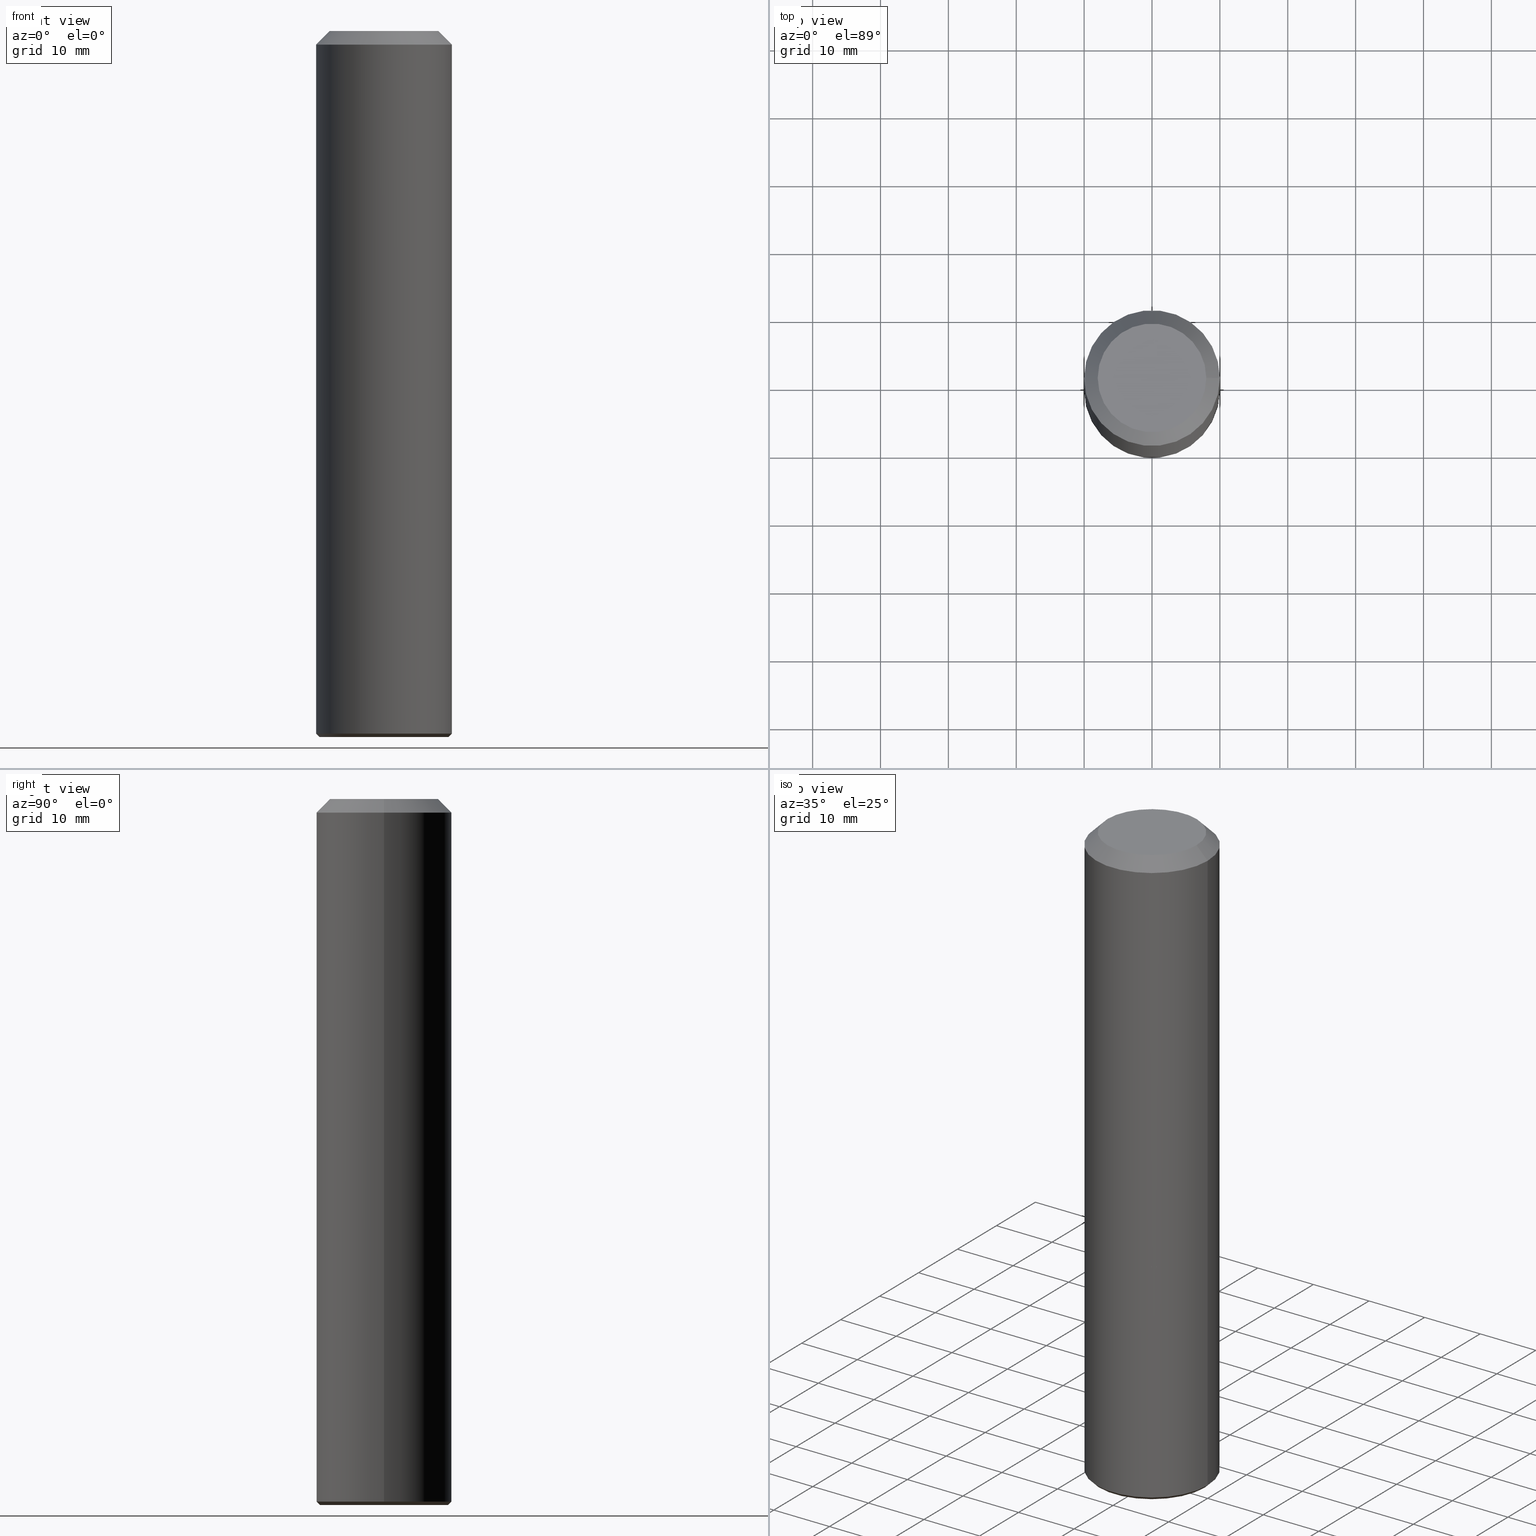
[diagram: canonical four-view strip — front | top / right | iso, engineering-drawing reading convention]
A machine part, canonical four-view strip (front | top / right | iso — engineering-drawing reading convention). The complete STEP part file that produces these views, byte-faithful:
ISO-10303-21;
HEADER;
FILE_DESCRIPTION (( 'STEP AP203' ),
    '1' );
FILE_NAME ('727.200.00.STEP',
    '2019-01-08T23:44:48',
    ( '' ),
    ( '' ),
    'SwSTEP 2.0',
    'SolidWorks 2019',
    '' );
FILE_SCHEMA (( 'CONFIG_CONTROL_DESIGN' ));
ENDSEC;

DATA;
#1 = COORDINATED_UNIVERSAL_TIME_OFFSET ( 1, 0, .AHEAD. ) ;
#2 = LOCAL_TIME ( 0, 44, 48.00000000000000000, #113 ) ;
#3 = ADVANCED_FACE ( 'NONE', ( #202 ), #217, .T. ) ;
#4 = VERTEX_POINT ( 'NONE', #63 ) ;
#5 =( NAMED_UNIT ( * ) SI_UNIT ( $, .STERADIAN. ) SOLID_ANGLE_UNIT ( ) );
#6 = DIRECTION ( 'NONE',  ( -1.000000000000000000, 0.0000000000000000000, 6.982962677686266711E-15 ) ) ;
#7 = APPROVAL ( #83, 'UNSPECIFIED' ) ;
#8 = CARTESIAN_POINT ( 'NONE',  ( 9.999999999999538147, 0.0000000000000000000, -66.00000000000007105 ) ) ;
#9 = EDGE_LOOP ( 'NONE', ( #79 ) ) ;
#10 = APPLICATION_PROTOCOL_DEFINITION ( 'international standard', 'config_control_design', 1994, #14 ) ;
#11 = ORIENTED_EDGE ( 'NONE', *, *, #148, .F. ) ;
#12 = PERSON_AND_ORGANIZATION ( #54, #102 ) ;
#13 = AXIS2_PLACEMENT_3D ( 'NONE', #115, #130, #20 ) ;
#14 = APPLICATION_CONTEXT ( 'configuration controlled 3d designs of mechanical parts and assemblies' ) ;
#15 = CARTESIAN_POINT ( 'NONE',  ( -1.396592535537254604E-14, 0.0000000000000000000, -2.000000000000001776 ) ) ;
#16 = CARTESIAN_POINT ( 'NONE',  ( 0.0000000000000000000, 0.0000000000000000000, 0.0000000000000000000 ) ) ;
#17 = DIRECTION ( 'NONE',  ( 1.000000000000000000, 0.0000000000000000000, -6.938893903907228378E-15 ) ) ;
#18 = DIRECTION ( 'NONE',  ( 6.982962677686266711E-15, 0.0000000000000000000, 1.000000000000000000 ) ) ;
#19 = PRODUCT_DEFINITION_FORMATION_WITH_SPECIFIED_SOURCE ( 'ANY', '', #117, .NOT_KNOWN. ) ;
#20 = DIRECTION ( 'NONE',  ( 1.000000000000000000, 0.0000000000000000000, -7.102166654756253620E-15 ) ) ;
#21 = PLANE ( 'NONE',  #13 ) ;
#22 = EDGE_CURVE ( 'NONE', #4, #4, #214, .T. ) ;
#23 = PERSON_AND_ORGANIZATION_ROLE ( 'classification_officer' ) ;
#24 =( NAMED_UNIT ( * ) PLANE_ANGLE_UNIT ( ) SI_UNIT ( $, .RADIAN. ) );
#25 = APPROVAL_ROLE ( '' ) ;
#26 = AXIS2_PLACEMENT_3D ( 'NONE', #16, #81, #129 ) ;
#27 =( LENGTH_UNIT ( ) NAMED_UNIT ( * ) SI_UNIT ( .MILLI., .METRE. ) );
#28 = DIRECTION ( 'NONE',  ( -6.982962677686266711E-15, 0.0000000000000000000, -1.000000000000000000 ) ) ;
#29 = CC_DESIGN_APPROVAL ( #163, ( #221 ) ) ;
#30 = EDGE_LOOP ( 'NONE', ( #98 ) ) ;
#31 = CC_DESIGN_APPROVAL ( #183, ( #177 ) ) ;
#32 = PERSON_AND_ORGANIZATION_ROLE ( 'design_owner' ) ;
#33 = PERSON_AND_ORGANIZATION ( #54, #102 ) ;
#34 = APPROVAL_PERSON_ORGANIZATION ( #176, #183, #25 ) ;
#35 = DATE_AND_TIME ( #188, #2 ) ;
#36 = FACE_OUTER_BOUND ( 'NONE', #46, .T. ) ;
#37 = CIRCLE ( 'NONE', #114, 10.00000000000000000 ) ;
#38 = APPROVAL_DATE_TIME ( #160, #183 ) ;
#39 = CARTESIAN_POINT ( 'NONE',  ( -7.262281184793717379E-13, 0.0000000000000000000, -104.0000000000000000 ) ) ;
#40 = DIRECTION ( 'NONE',  ( 6.982962677686266711E-15, 0.0000000000000000000, 1.000000000000000000 ) ) ;
#41 =( GEOMETRIC_REPRESENTATION_CONTEXT ( 3 ) GLOBAL_UNCERTAINTY_ASSIGNED_CONTEXT ( ( #161 ) ) GLOBAL_UNIT_ASSIGNED_CONTEXT ( ( #27, #24, #5 ) ) REPRESENTATION_CONTEXT ( 'NONE', 'WORKASPACE' ) );
#42 = ADVANCED_FACE ( 'NONE', ( #88 ), #21, .F. ) ;
#43 = AXIS2_PLACEMENT_3D ( 'NONE', #108, #109, #196 ) ;
#44 = CC_DESIGN_DATE_AND_TIME_ASSIGNMENT ( #94, #118, ( #177 ) ) ;
#45 = VERTEX_POINT ( 'NONE', #110 ) ;
#46 = EDGE_LOOP ( 'NONE', ( #48 ) ) ;
#47 = AXIS2_PLACEMENT_3D ( 'NONE', #209, #119, #121 ) ;
#48 = ORIENTED_EDGE ( 'NONE', *, *, #169, .T. ) ;
#49 = CC_DESIGN_PERSON_AND_ORGANIZATION_ASSIGNMENT ( #33, #153, ( #19 ) ) ;
#50 = FACE_OUTER_BOUND ( 'NONE', #198, .T. ) ;
#51 = AXIS2_PLACEMENT_3D ( 'NONE', #132, #107, #116 ) ;
#52 = PERSON_AND_ORGANIZATION ( #54, #102 ) ;
#53 = DIRECTION ( 'NONE',  ( 1.000000000000000000, 0.0000000000000000000, -6.982962677686266711E-15 ) ) ;
#54 = PERSON ( 'UNSPECIFIED', 'UNSPECIFIED', 'UNSPECIFIED', ('UNSPECIFIED'), ('UNSPECIFIED'), ('UNSPECIFIED') ) ;
#55 = APPROVAL_STATUS ( 'not_yet_approved' ) ;
#56 = CYLINDRICAL_SURFACE ( 'NONE', #179, 10.00000000000000000 ) ;
#57 = AXIS2_PLACEMENT_3D ( 'NONE', #164, #28, #6 ) ;
#58 = CARTESIAN_POINT ( 'NONE',  ( -7.396592199242181741E-13, 0.0000000000000000000, -104.0000000000000000 ) ) ;
#59 = PLANE ( 'NONE',  #43 ) ;
#60 = CALENDAR_DATE ( 2019, 9, 1 ) ;
#61 = CC_DESIGN_PERSON_AND_ORGANIZATION_ASSIGNMENT ( #206, #23, ( #177 ) ) ;
#62 = AXIS2_PLACEMENT_3D ( 'NONE', #39, #40, #173 ) ;
#63 = CARTESIAN_POINT ( 'NONE',  ( 7.999999999999992895, 0.0000000000000000000, -5.586370142149008320E-14 ) ) ;
#64 = ADVANCED_FACE ( 'NONE', ( #50, #90 ), #157, .T. ) ;
#65 = APPROVAL_PERSON_ORGANIZATION ( #12, #7, #150 ) ;
#66 = CC_DESIGN_DATE_AND_TIME_ASSIGNMENT ( #35, #170, ( #221 ) ) ;
#67 = EDGE_LOOP ( 'NONE', ( #112 ) ) ;
#68 = PERSON_AND_ORGANIZATION_ROLE ( 'creator' ) ;
#69 = APPROVAL_DATE_TIME ( #105, #163 ) ;
#70 = PERSON_AND_ORGANIZATION ( #54, #102 ) ;
#71 = DIRECTION ( 'NONE',  ( -7.337712398762083409E-15, 0.0000000000000000000, -1.000000000000000000 ) ) ;
#72 = FACE_BOUND ( 'NONE', #124, .T. ) ;
#73 = PRODUCT_RELATED_PRODUCT_CATEGORY ( 'detail', '', ( #117 ) ) ;
#74 = CARTESIAN_POINT ( 'NONE',  ( -7.359903637248369730E-13, 0.0000000000000000000, -103.4999999999999858 ) ) ;
#75 = CLOSED_SHELL ( 'NONE', ( #64, #3, #172, #211 ) ) ;
#76 = SHAPE_DEFINITION_REPRESENTATION ( #92, #141 ) ;
#77 = PLANE ( 'NONE',  #57 ) ;
#78 = VERTEX_POINT ( 'NONE', #145 ) ;
#79 = ORIENTED_EDGE ( 'NONE', *, *, #100, .T. ) ;
#80 = MANIFOLD_SOLID_BREP ( 'K�rper in Z minus drehen[1]', #155 ) ;
#81 = DIRECTION ( 'NONE',  ( 0.0000000000000000000, 0.0000000000000000000, 1.000000000000000000 ) ) ;
#82 = ORIENTED_EDGE ( 'NONE', *, *, #148, .T. ) ;
#83 = APPROVAL_STATUS ( 'not_yet_approved' ) ;
#84 = AXIS2_PLACEMENT_3D ( 'NONE', #189, #222, #154 ) ;
#85 = EDGE_LOOP ( 'NONE', ( #181 ) ) ;
#86 = EDGE_CURVE ( 'NONE', #95, #95, #203, .T. ) ;
#87 = COORDINATED_UNIVERSAL_TIME_OFFSET ( 1, 0, .AHEAD. ) ;
#88 = FACE_OUTER_BOUND ( 'NONE', #125, .T. ) ;
#89 = DIRECTION ( 'NONE',  ( 1.000000000000000000, 0.0000000000000000000, -6.938893903907228378E-15 ) ) ;
#90 = FACE_OUTER_BOUND ( 'NONE', #186, .T. ) ;
#91 = ADVANCED_FACE ( 'NONE', ( #36, #72 ), #138, .T. ) ;
#92 = PRODUCT_DEFINITION_SHAPE ( 'NONE', 'NONE',  #221 ) ;
#93 = CARTESIAN_POINT ( 'NONE',  ( -7.262281184793717379E-13, 0.0000000000000000000, -104.0000000000000000 ) ) ;
#94 = DATE_AND_TIME ( #60, #174 ) ;
#95 = VERTEX_POINT ( 'NONE', #139 ) ;
#96 = CC_DESIGN_PERSON_AND_ORGANIZATION_ASSIGNMENT ( #70, #32, ( #117 ) ) ;
#97 = ORIENTED_EDGE ( 'NONE', *, *, #137, .F. ) ;
#98 = ORIENTED_EDGE ( 'NONE', *, *, #169, .F. ) ;
#99 = COORDINATED_UNIVERSAL_TIME_OFFSET ( 1, 0, .AHEAD. ) ;
#100 = EDGE_CURVE ( 'NONE', #45, #45, #37, .T. ) ;
#101 = PERSON_AND_ORGANIZATION_ROLE ( 'design_supplier' ) ;
#102 = ORGANIZATION ( 'UNSPECIFIED', 'UNSPECIFIED', '' ) ;
#103 = DATE_AND_TIME ( #215, #144 ) ;
#104 = CARTESIAN_POINT ( 'NONE',  ( -4.608755367272936534E-13, 0.0000000000000000000, -66.00000000000000000 ) ) ;
#105 = DATE_AND_TIME ( #185, #159 ) ;
#106 = DIRECTION ( 'NONE',  ( -6.982962677686267499E-15, -0.0000000000000000000, -1.000000000000000000 ) ) ;
#107 = DIRECTION ( 'NONE',  ( 6.982962677686266711E-15, 0.0000000000000000000, 1.000000000000000000 ) ) ;
#108 = CARTESIAN_POINT ( 'NONE',  ( -4.608755367272936534E-13, 0.0000000000000000000, -66.00000000000000000 ) ) ;
#109 = DIRECTION ( 'NONE',  ( -6.982962677686266711E-15, 0.0000000000000000000, -1.000000000000000000 ) ) ;
#110 = CARTESIAN_POINT ( 'NONE',  ( 9.999999999999985789, 0.0000000000000000000, -2.000000000000071498 ) ) ;
#111 = APPROVAL_PERSON_ORGANIZATION ( #216, #163, #201 ) ;
#112 = ORIENTED_EDGE ( 'NONE', *, *, #22, .F. ) ;
#113 = COORDINATED_UNIVERSAL_TIME_OFFSET ( 1, 0, .AHEAD. ) ;
#114 = AXIS2_PLACEMENT_3D ( 'NONE', #15, #18, #136 ) ;
#115 = CARTESIAN_POINT ( 'NONE',  ( -7.396592199242181741E-13, 0.0000000000000000000, -104.0000000000000000 ) ) ;
#116 = DIRECTION ( 'NONE',  ( 1.000000000000000000, 0.0000000000000000000, -6.982962677686266711E-15 ) ) ;
#117 = PRODUCT ( '727.200.00', '727.200.00', '', ( #146 ) ) ;
#118 = DATE_TIME_ROLE ( 'classification_date' ) ;
#119 = DIRECTION ( 'NONE',  ( -6.982962677686266711E-15, 0.0000000000000000000, -1.000000000000000000 ) ) ;
#120 = CC_DESIGN_PERSON_AND_ORGANIZATION_ASSIGNMENT ( #204, #101, ( #19 ) ) ;
#121 = DIRECTION ( 'NONE',  ( -1.000000000000000000, 0.0000000000000000000, 6.982962677686266711E-15 ) ) ;
#122 = AXIS2_PLACEMENT_3D ( 'NONE', #135, #192, #53 ) ;
#123 = CC_DESIGN_APPROVAL ( #7, ( #19 ) ) ;
#124 = EDGE_LOOP ( 'NONE', ( #11 ) ) ;
#125 = EDGE_LOOP ( 'NONE', ( #82 ) ) ;
#126 = CIRCLE ( 'NONE', #195, 10.00000000000000000 ) ;
#127 = EDGE_LOOP ( 'NONE', ( #147 ) ) ;
#128 = APPROVAL_DATE_TIME ( #103, #7 ) ;
#129 = DIRECTION ( 'NONE',  ( 1.000000000000000000, 0.0000000000000000000, 0.0000000000000000000 ) ) ;
#130 = DIRECTION ( 'NONE',  ( 7.102166654756253620E-15, -0.0000000000000000000, 1.000000000000000000 ) ) ;
#131 = AXIS2_PLACEMENT_3D ( 'NONE', #158, #223, #191 ) ;
#132 = CARTESIAN_POINT ( 'NONE',  ( 0.0000000000000000000, 0.0000000000000000000, 0.0000000000000000000 ) ) ;
#133 = ADVANCED_FACE ( 'NONE', ( #152, #207 ), #56, .T. ) ;
#134 = APPROVAL_STATUS ( 'not_yet_approved' ) ;
#135 = CARTESIAN_POINT ( 'NONE',  ( -3.326488793394202502E-30, 0.0000000000000000000, -4.763721284124635757E-16 ) ) ;
#136 = DIRECTION ( 'NONE',  ( 1.000000000000000000, 0.0000000000000000000, -6.982261990806648555E-15 ) ) ;
#137 = EDGE_CURVE ( 'NONE', #180, #180, #126, .T. ) ;
#138 = CONICAL_SURFACE ( 'NONE', #219, 9.499999999999994671, 0.7853981633974447263 ) ;
#139 = CARTESIAN_POINT ( 'NONE',  ( 9.999999999999538147, 0.0000000000000000000, -66.00000000000007105 ) ) ;
#140 = CC_DESIGN_SECURITY_CLASSIFICATION ( #177, ( #19 ) ) ;
#141 = ADVANCED_BREP_SHAPE_REPRESENTATION ( '727.200.00', ( #80, #151, #26 ), #41 ) ;
#142 = APPLICATION_CONTEXT ( 'configuration controlled 3d designs of mechanical parts and assemblies' ) ;
#143 = ORIENTED_EDGE ( 'NONE', *, *, #137, .T. ) ;
#144 = LOCAL_TIME ( 0, 44, 48.00000000000000000, #87 ) ;
#145 = CARTESIAN_POINT ( 'NONE',  ( -10.00000000000074074, 0.0000000000000000000, -103.4999999999999147 ) ) ;
#146 = MECHANICAL_CONTEXT ( 'NONE', #142, 'mechanical' ) ;
#147 = ORIENTED_EDGE ( 'NONE', *, *, #22, .T. ) ;
#148 = EDGE_CURVE ( 'NONE', #213, #213, #149, .T. ) ;
#149 = CIRCLE ( 'NONE', #131, 9.499999999999994671 ) ;
#150 = APPROVAL_ROLE ( '' ) ;
#151 = MANIFOLD_SOLID_BREP ( 'K�rper in Z minus drehen[2]', #75 ) ;
#152 = FACE_OUTER_BOUND ( 'NONE', #30, .T. ) ;
#153 = PERSON_AND_ORGANIZATION_ROLE ( 'creator' ) ;
#154 = DIRECTION ( 'NONE',  ( 1.000000000000000000, 0.0000000000000000000, -6.938893903907228378E-15 ) ) ;
#155 = CLOSED_SHELL ( 'NONE', ( #199, #133, #91, #42 ) ) ;
#156 = FACE_OUTER_BOUND ( 'NONE', #9, .T. ) ;
#157 = CYLINDRICAL_SURFACE ( 'NONE', #62, 10.00000000000000000 ) ;
#158 = CARTESIAN_POINT ( 'NONE',  ( -7.396592199242181741E-13, 0.0000000000000000000, -104.0000000000000000 ) ) ;
#159 = LOCAL_TIME ( 0, 44, 48.00000000000000000, #99 ) ;
#160 = DATE_AND_TIME ( #193, #187 ) ;
#161 = UNCERTAINTY_MEASURE_WITH_UNIT (LENGTH_MEASURE( 1.000000000000000082E-05 ), #27, 'distance_accuracy_value', 'NONE');
#162 = CC_DESIGN_PERSON_AND_ORGANIZATION_ASSIGNMENT ( #52, #68, ( #221 ) ) ;
#163 = APPROVAL ( #134, 'UNSPECIFIED' ) ;
#164 = CARTESIAN_POINT ( 'NONE',  ( -4.608755367272936534E-13, 0.0000000000000000000, -66.00000000000000000 ) ) ;
#165 = ORIENTED_EDGE ( 'NONE', *, *, #100, .F. ) ;
#166 = CIRCLE ( 'NONE', #182, 10.00000000000000533 ) ;
#167 = ORIENTED_EDGE ( 'NONE', *, *, #86, .F. ) ;
#168 = EDGE_LOOP ( 'NONE', ( #97 ) ) ;
#169 = EDGE_CURVE ( 'NONE', #78, #78, #166, .T. ) ;
#170 = DATE_TIME_ROLE ( 'creation_date' ) ;
#171 = DIRECTION ( 'NONE',  ( 1.000000000000000000, 0.0000000000000000000, -7.304098846218139203E-15 ) ) ;
#172 = ADVANCED_FACE ( 'NONE', ( #156, #220 ), #208, .T. ) ;
#173 = DIRECTION ( 'NONE',  ( 1.000000000000000000, 0.0000000000000000000, -6.938893903907228378E-15 ) ) ;
#174 = LOCAL_TIME ( 0, 44, 48.00000000000000000, #210 ) ;
#175 = DIRECTION ( 'NONE',  ( 7.337712398762083409E-15, 0.0000000000000000000, 1.000000000000000000 ) ) ;
#176 = PERSON_AND_ORGANIZATION ( #54, #102 ) ;
#177 = SECURITY_CLASSIFICATION ( '', '', #190 ) ;
#178 = CARTESIAN_POINT ( 'NONE',  ( -9.500000000000733635, 0.0000000000000000000, -103.9999999999999289 ) ) ;
#179 = AXIS2_PLACEMENT_3D ( 'NONE', #93, #218, #89 ) ;
#180 = VERTEX_POINT ( 'NONE', #8 ) ;
#181 = ORIENTED_EDGE ( 'NONE', *, *, #86, .T. ) ;
#182 = AXIS2_PLACEMENT_3D ( 'NONE', #74, #71, #205 ) ;
#183 = APPROVAL ( #55, 'UNSPECIFIED' ) ;
#184 = APPLICATION_PROTOCOL_DEFINITION ( 'international standard', 'config_control_design', 1994, #142 ) ;
#185 = CALENDAR_DATE ( 2019, 9, 1 ) ;
#186 = EDGE_LOOP ( 'NONE', ( #165 ) ) ;
#187 = LOCAL_TIME ( 0, 44, 48.00000000000000000, #1 ) ;
#188 = CALENDAR_DATE ( 2019, 9, 1 ) ;
#189 = CARTESIAN_POINT ( 'NONE',  ( -4.608755367272936534E-13, 0.0000000000000000000, -66.00000000000000000 ) ) ;
#190 = SECURITY_CLASSIFICATION_LEVEL ( 'unclassified' ) ;
#191 = DIRECTION ( 'NONE',  ( -1.000000000000000000, 0.0000000000000000000, 7.304098846218139203E-15 ) ) ;
#192 = DIRECTION ( 'NONE',  ( 6.982962677686266711E-15, 0.0000000000000000000, 1.000000000000000000 ) ) ;
#193 = CALENDAR_DATE ( 2019, 9, 1 ) ;
#194 = DESIGN_CONTEXT ( 'detailed design', #14, 'design' ) ;
#195 = AXIS2_PLACEMENT_3D ( 'NONE', #104, #106, #17 ) ;
#196 = DIRECTION ( 'NONE',  ( -1.000000000000000000, 0.0000000000000000000, 6.982962677686266711E-15 ) ) ;
#197 = FACE_OUTER_BOUND ( 'NONE', #85, .T. ) ;
#198 = EDGE_LOOP ( 'NONE', ( #167 ) ) ;
#199 = ADVANCED_FACE ( 'NONE', ( #200 ), #59, .F. ) ;
#200 = FACE_OUTER_BOUND ( 'NONE', #168, .T. ) ;
#201 = APPROVAL_ROLE ( '' ) ;
#202 = FACE_OUTER_BOUND ( 'NONE', #127, .T. ) ;
#203 = CIRCLE ( 'NONE', #84, 10.00000000000000000 ) ;
#204 = PERSON_AND_ORGANIZATION ( #54, #102 ) ;
#205 = DIRECTION ( 'NONE',  ( -1.000000000000000000, 0.0000000000000000000, 6.938893903907224433E-15 ) ) ;
#206 = PERSON_AND_ORGANIZATION ( #54, #102 ) ;
#207 = FACE_OUTER_BOUND ( 'NONE', #212, .T. ) ;
#208 = CONICAL_SURFACE ( 'NONE', #47, 7.999999999999992895, 0.7853981633974496113 ) ;
#209 = CARTESIAN_POINT ( 'NONE',  ( 0.0000000000000000000, 0.0000000000000000000, 0.0000000000000000000 ) ) ;
#210 = COORDINATED_UNIVERSAL_TIME_OFFSET ( 1, 0, .AHEAD. ) ;
#211 = ADVANCED_FACE ( 'NONE', ( #197 ), #77, .T. ) ;
#212 = EDGE_LOOP ( 'NONE', ( #143 ) ) ;
#213 = VERTEX_POINT ( 'NONE', #178 ) ;
#214 = CIRCLE ( 'NONE', #51, 7.999999999999992895 ) ;
#215 = CALENDAR_DATE ( 2019, 9, 1 ) ;
#216 = PERSON_AND_ORGANIZATION ( #54, #102 ) ;
#217 = PLANE ( 'NONE',  #122 ) ;
#218 = DIRECTION ( 'NONE',  ( 6.982962677686266711E-15, 0.0000000000000000000, 1.000000000000000000 ) ) ;
#219 = AXIS2_PLACEMENT_3D ( 'NONE', #58, #175, #171 ) ;
#220 = FACE_BOUND ( 'NONE', #67, .T. ) ;
#221 = PRODUCT_DEFINITION ( 'UNKNOWN', '', #19, #194 ) ;
#222 = DIRECTION ( 'NONE',  ( -6.982962677686267499E-15, -0.0000000000000000000, -1.000000000000000000 ) ) ;
#223 = DIRECTION ( 'NONE',  ( -7.337712398762083409E-15, 0.0000000000000000000, -1.000000000000000000 ) ) ;
ENDSEC;
END-ISO-10303-21;
15437